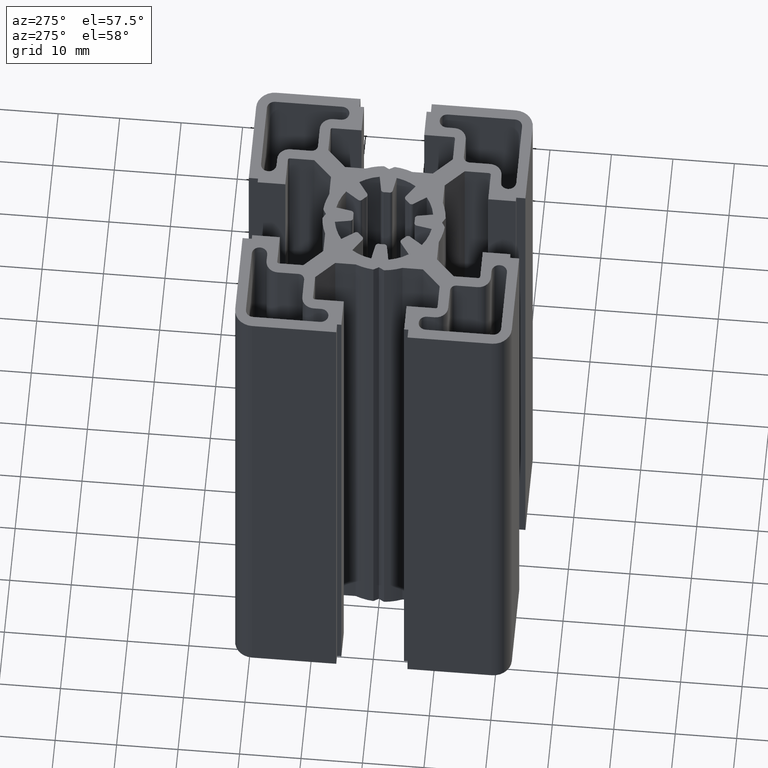
[diagram: clean part render]
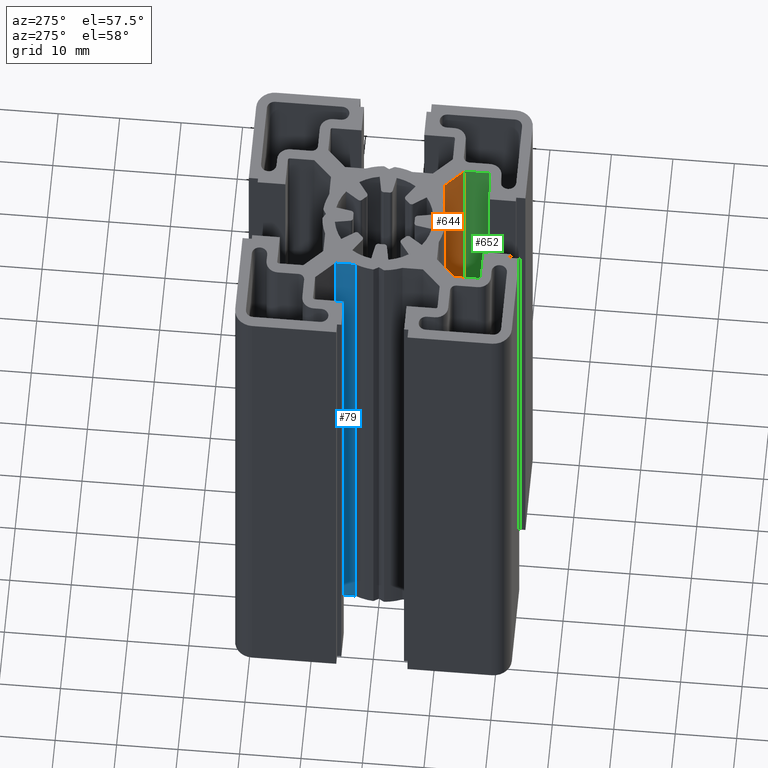
[diagram: same view with three faces highlighted in distinct colors, each labeled with its STEP entity id]
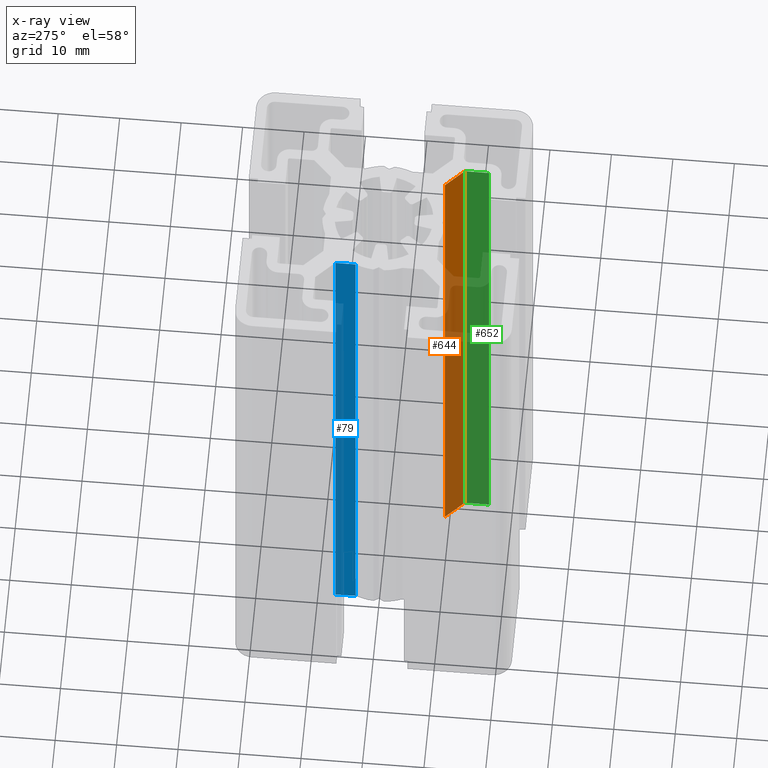
[diagram: x-ray of the same camera — body ghosted, the three highlighted faces saturated]
A machine part, auxiliary view with three faces highlighted in distinct colors.
The next image is the same camera in x-ray (body ghosted, the three faces saturated) — at least one of them is partly hidden behind the body in this view.
Their STEP definitions:

[orange] entity #644 — the highlighted planar face has unit normal (0.7071, 0.7071, -0).
#588 = EDGE_LOOP ( 'NONE', ( #646, #599, #648, #651 ) ) ;
#596 = EDGE_CURVE ( 'NONE', #821, #1656, #2679, .T. ) ;
#599 = ORIENTED_EDGE ( 'NONE', *, *, #643, .F. ) ;
#643 = EDGE_CURVE ( 'NONE', #779, #1718, #2744, .T. ) ;
#644 = ADVANCED_FACE ( 'NONE', ( #2776 ), #2745, .F. ) ;
#646 = ORIENTED_EDGE ( 'NONE', *, *, #1661, .T. ) ;
#648 = ORIENTED_EDGE ( 'NONE', *, *, #783, .F. ) ;
#651 = ORIENTED_EDGE ( 'NONE', *, *, #596, .T. ) ;
#779 = VERTEX_POINT ( 'NONE', #3004 ) ;
#783 = EDGE_CURVE ( 'NONE', #821, #779, #2991, .T. ) ;
#821 = VERTEX_POINT ( 'NONE', #3092 ) ;
#1656 = VERTEX_POINT ( 'NONE', #4442 ) ;
#1661 = EDGE_CURVE ( 'NONE', #1656, #1718, #4434, .T. ) ;
#1718 = VERTEX_POINT ( 'NONE', #4557 ) ;
#2678 = CARTESIAN_POINT ( 'NONE',  ( 7.128679656440355400, -9.250000000000000000, 100.0000000000000000 ) ) ;
#2679 = LINE ( 'NONE', #2678, #2733 ) ;
#2732 = DIRECTION ( 'NONE',  ( -0.0000000000000000000, -0.0000000000000000000, -1.000000000000000000 ) ) ;
#2733 = VECTOR ( 'NONE', #2732, 1000.000000000000000 ) ;
#2744 = LINE ( 'NONE', #2775, #2774 ) ;
#2745 = PLANE ( 'NONE',  #2771 ) ;
#2768 = DIRECTION ( 'NONE',  ( -0.7071067811865479100, 0.7071067811865472400, 0.0000000000000000000 ) ) ;
#2771 = AXIS2_PLACEMENT_3D ( 'NONE', #2792, #2782, #2768 ) ;
#2773 = DIRECTION ( 'NONE',  ( -0.0000000000000000000, -0.0000000000000000000, -1.000000000000000000 ) ) ;
#2774 = VECTOR ( 'NONE', #2773, 1000.000000000000000 ) ;
#2775 = CARTESIAN_POINT ( 'NONE',  ( 10.12500000000000000, -12.24632034355964000, 100.0000000000000000 ) ) ;
#2776 = FACE_OUTER_BOUND ( 'NONE', #588, .T. ) ;
#2782 = DIRECTION ( 'NONE',  ( 0.7071067811865472400, 0.7071067811865479100, -0.0000000000000000000 ) ) ;
#2792 = CARTESIAN_POINT ( 'NONE',  ( 10.12500000000000000, -12.24632034355964000, 100.0000000000000000 ) ) ;
#2988 = DIRECTION ( 'NONE',  ( 0.7071067811865479100, -0.7071067811865471300, -0.0000000000000000000 ) ) ;
#2989 = VECTOR ( 'NONE', #2988, 1000.000000000000000 ) ;
#2990 = CARTESIAN_POINT ( 'NONE',  ( 10.12500000000000000, -12.24632034355964000, 100.0000000000000000 ) ) ;
#2991 = LINE ( 'NONE', #2990, #2989 ) ;
#3004 = CARTESIAN_POINT ( 'NONE',  ( 10.12500000000000000, -12.24632034355964000, 100.0000000000000000 ) ) ;
#3092 = CARTESIAN_POINT ( 'NONE',  ( 7.128679656440355400, -9.250000000000000000, 100.0000000000000000 ) ) ;
#4425 = DIRECTION ( 'NONE',  ( 0.7071067811865479100, -0.7071067811865471300, -0.0000000000000000000 ) ) ;
#4426 = VECTOR ( 'NONE', #4425, 1000.000000000000000 ) ;
#4427 = CARTESIAN_POINT ( 'NONE',  ( 10.12500000000000000, -12.24632034355964000, 0.0000000000000000000 ) ) ;
#4434 = LINE ( 'NONE', #4427, #4426 ) ;
#4442 = CARTESIAN_POINT ( 'NONE',  ( 7.128679656440355400, -9.250000000000000000, 0.0000000000000000000 ) ) ;
#4557 = CARTESIAN_POINT ( 'NONE',  ( 10.12500000000000000, -12.24632034355964000, 0.0000000000000000000 ) ) ;

[blue] entity #79 — the highlighted planar face has unit normal (1, 0, -0).
#67 = EDGE_CURVE ( 'NONE', #710, #1765, #2038, .T. ) ;
#72 = ORIENTED_EDGE ( 'NONE', *, *, #1806, .T. ) ;
#73 = ORIENTED_EDGE ( 'NONE', *, *, #80, .F. ) ;
#75 = ORIENTED_EDGE ( 'NONE', *, *, #706, .F. ) ;
#76 = ORIENTED_EDGE ( 'NONE', *, *, #67, .T. ) ;
#79 = ADVANCED_FACE ( 'NONE', ( #2032 ), #217, .F. ) ;
#80 = EDGE_CURVE ( 'NONE', #712, #1762, #2073, .T. ) ;
#84 = EDGE_LOOP ( 'NONE', ( #72, #73, #75, #76 ) ) ;
#217 = PLANE ( 'NONE',  #324 ) ;
#323 = CARTESIAN_POINT ( 'NONE',  ( -9.250000000000001800, 7.128679656440354500, 100.0000000000000000 ) ) ;
#324 = AXIS2_PLACEMENT_3D ( 'NONE', #323, #2031, #2022 ) ;
#706 = EDGE_CURVE ( 'NONE', #710, #712, #2855, .T. ) ;
#710 = VERTEX_POINT ( 'NONE', #2853 ) ;
#712 = VERTEX_POINT ( 'NONE', #2898 ) ;
#1762 = VERTEX_POINT ( 'NONE', #4600 ) ;
#1765 = VERTEX_POINT ( 'NONE', #4584 ) ;
#1806 = EDGE_CURVE ( 'NONE', #1765, #1762, #4691, .T. ) ;
#2022 = DIRECTION ( 'NONE',  ( -5.210931166030274700E-016, 1.000000000000000000, 0.0000000000000000000 ) ) ;
#2031 = DIRECTION ( 'NONE',  ( 1.000000000000000000, 5.210931166030274700E-016, -0.0000000000000000000 ) ) ;
#2032 = FACE_OUTER_BOUND ( 'NONE', #84, .T. ) ;
#2035 = DIRECTION ( 'NONE',  ( -0.0000000000000000000, -0.0000000000000000000, -1.000000000000000000 ) ) ;
#2036 = VECTOR ( 'NONE', #2035, 1000.000000000000000 ) ;
#2037 = CARTESIAN_POINT ( 'NONE',  ( -9.250000000000001800, 7.128679656440354500, 100.0000000000000000 ) ) ;
#2038 = LINE ( 'NONE', #2037, #2036 ) ;
#2070 = DIRECTION ( 'NONE',  ( -0.0000000000000000000, -0.0000000000000000000, -1.000000000000000000 ) ) ;
#2071 = VECTOR ( 'NONE', #2070, 1000.000000000000000 ) ;
#2072 = CARTESIAN_POINT ( 'NONE',  ( -9.250000151315919800, 3.799671100549481700, 100.0000000000000000 ) ) ;
#2073 = LINE ( 'NONE', #2072, #2071 ) ;
#2850 = DIRECTION ( 'NONE',  ( 5.210931166030274700E-016, -1.000000000000000000, 0.0000000000000000000 ) ) ;
#2851 = VECTOR ( 'NONE', #2850, 1000.000000000000000 ) ;
#2852 = CARTESIAN_POINT ( 'NONE',  ( -9.250000000000001800, 7.128679656440354500, 100.0000000000000000 ) ) ;
#2853 = CARTESIAN_POINT ( 'NONE',  ( -9.250000000000001800, 7.128679656440354500, 100.0000000000000000 ) ) ;
#2855 = LINE ( 'NONE', #2852, #2851 ) ;
#2898 = CARTESIAN_POINT ( 'NONE',  ( -9.250000151315919800, 3.799671100549481700, 100.0000000000000000 ) ) ;
#4584 = CARTESIAN_POINT ( 'NONE',  ( -9.250000000000001800, 7.128679656440354500, 0.0000000000000000000 ) ) ;
#4600 = CARTESIAN_POINT ( 'NONE',  ( -9.250000151315919800, 3.799671100549481700, 0.0000000000000000000 ) ) ;
#4680 = DIRECTION ( 'NONE',  ( 5.210931166030274700E-016, -1.000000000000000000, 0.0000000000000000000 ) ) ;
#4681 = VECTOR ( 'NONE', #4680, 1000.000000000000000 ) ;
#4682 = CARTESIAN_POINT ( 'NONE',  ( -9.250000000000001800, 7.128679656440354500, 0.0000000000000000000 ) ) ;
#4691 = LINE ( 'NONE', #4682, #4681 ) ;

[green] entity #652 — the highlighted planar face has unit normal (1, 0, 0).
#591 = ORIENTED_EDGE ( 'NONE', *, *, #653, .F. ) ;
#634 = ORIENTED_EDGE ( 'NONE', *, *, #643, .T. ) ;
#643 = EDGE_CURVE ( 'NONE', #779, #1718, #2744, .T. ) ;
#645 = ORIENTED_EDGE ( 'NONE', *, *, #813, .F. ) ;
#647 = ORIENTED_EDGE ( 'NONE', *, *, #1714, .T. ) ;
#650 = EDGE_LOOP ( 'NONE', ( #647, #591, #645, #634 ) ) ;
#652 = ADVANCED_FACE ( 'NONE', ( #2780 ), #2746, .F. ) ;
#653 = EDGE_CURVE ( 'NONE', #782, #1669, #2809, .T. ) ;
#779 = VERTEX_POINT ( 'NONE', #3004 ) ;
#782 = VERTEX_POINT ( 'NONE', #3003 ) ;
#813 = EDGE_CURVE ( 'NONE', #779, #782, #3055, .T. ) ;
#1669 = VERTEX_POINT ( 'NONE', #4417 ) ;
#1714 = EDGE_CURVE ( 'NONE', #1718, #1669, #4520, .T. ) ;
#1718 = VERTEX_POINT ( 'NONE', #4557 ) ;
#2744 = LINE ( 'NONE', #2775, #2774 ) ;
#2746 = PLANE ( 'NONE',  #2821 ) ;
#2773 = DIRECTION ( 'NONE',  ( -0.0000000000000000000, -0.0000000000000000000, -1.000000000000000000 ) ) ;
#2774 = VECTOR ( 'NONE', #2773, 1000.000000000000000 ) ;
#2775 = CARTESIAN_POINT ( 'NONE',  ( 10.12500000000000000, -12.24632034355964000, 100.0000000000000000 ) ) ;
#2780 = FACE_OUTER_BOUND ( 'NONE', #650, .T. ) ;
#2806 = DIRECTION ( 'NONE',  ( -0.0000000000000000000, -0.0000000000000000000, -1.000000000000000000 ) ) ;
#2807 = VECTOR ( 'NONE', #2806, 1000.000000000000000 ) ;
#2808 = CARTESIAN_POINT ( 'NONE',  ( 10.12500000000000000, -16.19999999999999900, 100.0000000000000000 ) ) ;
#2809 = LINE ( 'NONE', #2808, #2807 ) ;
#2812 = DIRECTION ( 'NONE',  ( 0.0000000000000000000, 0.0000000000000000000, -1.000000000000000000 ) ) ;
#2813 = DIRECTION ( 'NONE',  ( 1.000000000000000000, 0.0000000000000000000, 0.0000000000000000000 ) ) ;
#2816 = CARTESIAN_POINT ( 'NONE',  ( 10.12500000000000000, -16.19999999999999900, 100.0000000000000000 ) ) ;
#2821 = AXIS2_PLACEMENT_3D ( 'NONE', #2816, #2813, #2812 ) ;
#3003 = CARTESIAN_POINT ( 'NONE',  ( 10.12500000000000000, -16.19999999999999900, 100.0000000000000000 ) ) ;
#3004 = CARTESIAN_POINT ( 'NONE',  ( 10.12500000000000000, -12.24632034355964000, 100.0000000000000000 ) ) ;
#3050 = DIRECTION ( 'NONE',  ( -0.0000000000000000000, -1.000000000000000000, -0.0000000000000000000 ) ) ;
#3051 = VECTOR ( 'NONE', #3050, 1000.000000000000000 ) ;
#3052 = CARTESIAN_POINT ( 'NONE',  ( 10.12500000000000000, -16.19999999999999900, 100.0000000000000000 ) ) ;
#3055 = LINE ( 'NONE', #3052, #3051 ) ;
#4417 = CARTESIAN_POINT ( 'NONE',  ( 10.12500000000000000, -16.19999999999999900, 0.0000000000000000000 ) ) ;
#4501 = VECTOR ( 'NONE', #4559, 1000.000000000000000 ) ;
#4502 = CARTESIAN_POINT ( 'NONE',  ( 10.12500000000000000, -16.19999999999999900, 0.0000000000000000000 ) ) ;
#4520 = LINE ( 'NONE', #4502, #4501 ) ;
#4557 = CARTESIAN_POINT ( 'NONE',  ( 10.12500000000000000, -12.24632034355964000, 0.0000000000000000000 ) ) ;
#4559 = DIRECTION ( 'NONE',  ( -0.0000000000000000000, -1.000000000000000000, -0.0000000000000000000 ) ) ;